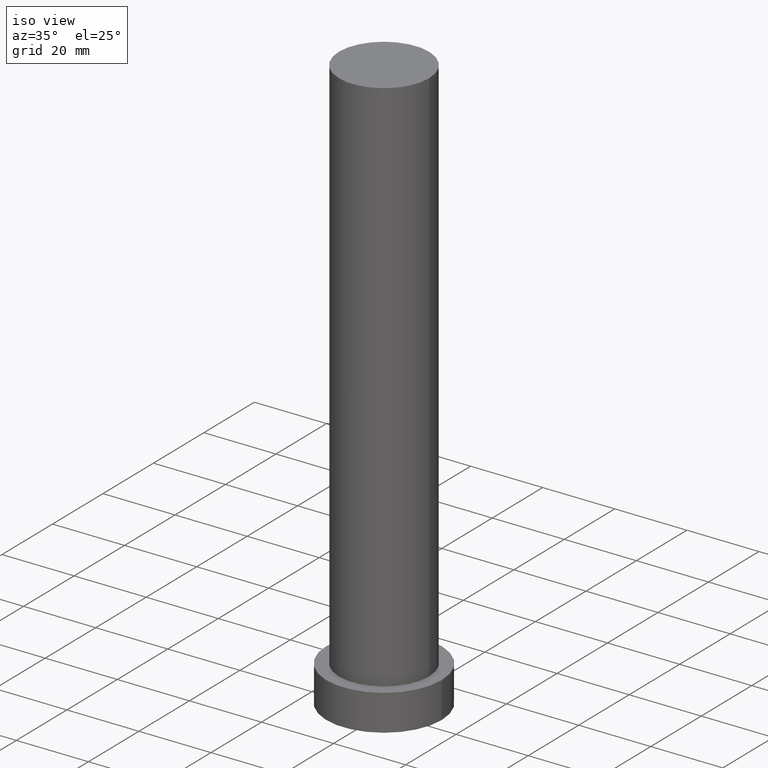
[diagram: clean part render]
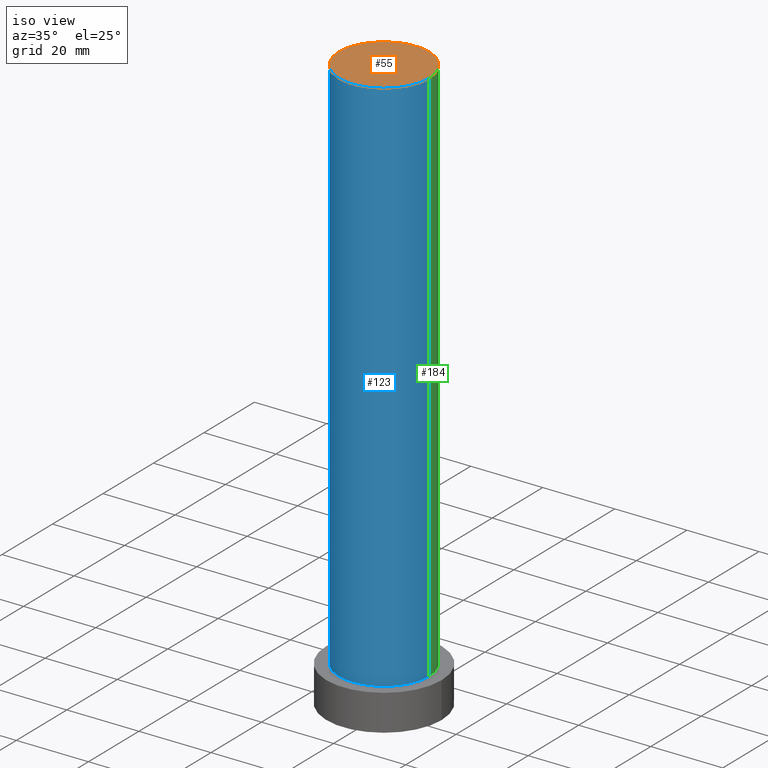
[diagram: same view with three faces highlighted in distinct colors, each labeled with its STEP entity id]
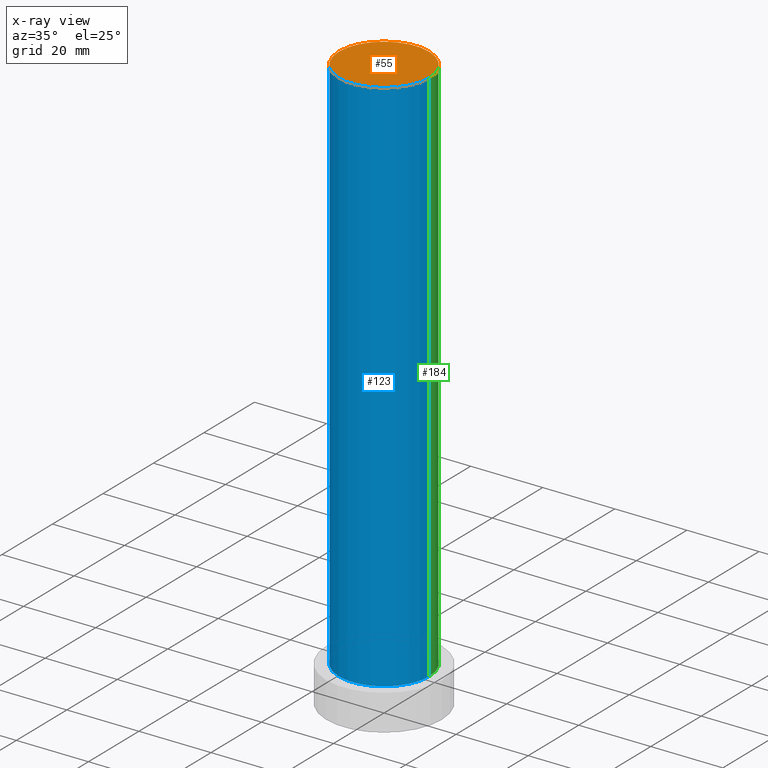
[diagram: x-ray of the same camera — body ghosted, the three highlighted faces saturated]
A machine part, iso view with three faces highlighted in distinct colors.
The next image is the same camera in x-ray (body ghosted, the three faces saturated) — at least one of them is partly hidden behind the body in this view.
Their STEP definitions:

[orange] entity #55 — the highlighted planar face has unit normal (0, 0, 1).
#2 = DIRECTION ( 'NONE',  ( 0.000000000000000000, 0.000000000000000000, 1.000000000000000000 ) ) ;
#19 = CIRCLE ( 'NONE', #163, 12.50000000000000000 ) ;
#39 = VERTEX_POINT ( 'NONE', #133 ) ;
#41 = CARTESIAN_POINT ( 'NONE',  ( 0.000000000000000000, 0.000000000000000000, 160.0000000000000000 ) ) ;
#52 = CIRCLE ( 'NONE', #86, 12.50000000000000000 ) ;
#55 = ADVANCED_FACE ( 'NONE', ( #254 ), #104, .T. ) ;
#78 = ORIENTED_EDGE ( 'NONE', *, *, #85, .T. ) ;
#80 = DIRECTION ( 'NONE',  ( 1.000000000000000000, 0.000000000000000000, 0.000000000000000000 ) ) ;
#85 = EDGE_CURVE ( 'NONE', #39, #127, #19, .T. ) ;
#86 = AXIS2_PLACEMENT_3D ( 'NONE', #139, #212, #80 ) ;
#89 = EDGE_CURVE ( 'NONE', #127, #39, #52, .T. ) ;
#93 = EDGE_LOOP ( 'NONE', ( #78, #110 ) ) ;
#104 = PLANE ( 'NONE',  #227 ) ;
#110 = ORIENTED_EDGE ( 'NONE', *, *, #89, .T. ) ;
#118 = CARTESIAN_POINT ( 'NONE',  ( 12.50000000000000000, 1.530808498934191521E-15, 160.0000000000000000 ) ) ;
#127 = VERTEX_POINT ( 'NONE', #118 ) ;
#133 = CARTESIAN_POINT ( 'NONE',  ( -12.50000000000000000, 0.000000000000000000, 160.0000000000000000 ) ) ;
#134 = DIRECTION ( 'NONE',  ( 0.000000000000000000, 0.000000000000000000, 1.000000000000000000 ) ) ;
#139 = CARTESIAN_POINT ( 'NONE',  ( 0.000000000000000000, 0.000000000000000000, 160.0000000000000000 ) ) ;
#159 = CARTESIAN_POINT ( 'NONE',  ( 0.000000000000000000, 0.000000000000000000, 160.0000000000000000 ) ) ;
#163 = AXIS2_PLACEMENT_3D ( 'NONE', #41, #134, #199 ) ;
#179 = DIRECTION ( 'NONE',  ( 1.000000000000000000, 0.000000000000000000, -0.000000000000000000 ) ) ;
#199 = DIRECTION ( 'NONE',  ( 1.000000000000000000, 0.000000000000000000, 0.000000000000000000 ) ) ;
#212 = DIRECTION ( 'NONE',  ( 0.000000000000000000, 0.000000000000000000, 1.000000000000000000 ) ) ;
#227 = AXIS2_PLACEMENT_3D ( 'NONE', #159, #2, #179 ) ;
#254 = FACE_OUTER_BOUND ( 'NONE', #93, .T. ) ;

[blue] entity #123 — the highlighted cylindrical surface (partial cylindrical patch) has radius 12.5 mm, axis along (-0, -0, -1).
#1 = FACE_OUTER_BOUND ( 'NONE', #244, .T. ) ;
#18 = AXIS2_PLACEMENT_3D ( 'NONE', #171, #188, #152 ) ;
#19 = CIRCLE ( 'NONE', #163, 12.50000000000000000 ) ;
#39 = VERTEX_POINT ( 'NONE', #133 ) ;
#41 = CARTESIAN_POINT ( 'NONE',  ( 0.000000000000000000, 0.000000000000000000, 160.0000000000000000 ) ) ;
#43 = EDGE_CURVE ( 'NONE', #173, #77, #70, .T. ) ;
#61 = ORIENTED_EDGE ( 'NONE', *, *, #201, .F. ) ;
#66 = EDGE_CURVE ( 'NONE', #39, #173, #119, .T. ) ;
#70 = CIRCLE ( 'NONE', #18, 12.50000000000000000 ) ;
#75 = ORIENTED_EDGE ( 'NONE', *, *, #85, .F. ) ;
#77 = VERTEX_POINT ( 'NONE', #213 ) ;
#81 = DIRECTION ( 'NONE',  ( -0.000000000000000000, -0.000000000000000000, -1.000000000000000000 ) ) ;
#85 = EDGE_CURVE ( 'NONE', #39, #127, #19, .T. ) ;
#109 = VECTOR ( 'NONE', #177, 1000.000000000000000 ) ;
#111 = ORIENTED_EDGE ( 'NONE', *, *, #66, .T. ) ;
#116 = ORIENTED_EDGE ( 'NONE', *, *, #43, .T. ) ;
#118 = CARTESIAN_POINT ( 'NONE',  ( 12.50000000000000000, 1.530808498934191521E-15, 160.0000000000000000 ) ) ;
#119 = LINE ( 'NONE', #176, #109 ) ;
#123 = ADVANCED_FACE ( 'NONE', ( #1 ), #196, .T. ) ;
#127 = VERTEX_POINT ( 'NONE', #118 ) ;
#133 = CARTESIAN_POINT ( 'NONE',  ( -12.50000000000000000, 0.000000000000000000, 160.0000000000000000 ) ) ;
#134 = DIRECTION ( 'NONE',  ( 0.000000000000000000, 0.000000000000000000, 1.000000000000000000 ) ) ;
#138 = CARTESIAN_POINT ( 'NONE',  ( 0.000000000000000000, 0.000000000000000000, 160.0000000000000000 ) ) ;
#141 = AXIS2_PLACEMENT_3D ( 'NONE', #138, #81, #181 ) ;
#152 = DIRECTION ( 'NONE',  ( 1.000000000000000000, 0.000000000000000000, 0.000000000000000000 ) ) ;
#158 = DIRECTION ( 'NONE',  ( -0.000000000000000000, -0.000000000000000000, -1.000000000000000000 ) ) ;
#161 = CARTESIAN_POINT ( 'NONE',  ( -12.50000000000000000, 0.000000000000000000, 10.00000000000000000 ) ) ;
#163 = AXIS2_PLACEMENT_3D ( 'NONE', #41, #134, #199 ) ;
#166 = VECTOR ( 'NONE', #158, 1000.000000000000000 ) ;
#171 = CARTESIAN_POINT ( 'NONE',  ( 0.000000000000000000, 0.000000000000000000, 10.00000000000000000 ) ) ;
#173 = VERTEX_POINT ( 'NONE', #161 ) ;
#176 = CARTESIAN_POINT ( 'NONE',  ( -12.50000000000000000, 0.000000000000000000, 160.0000000000000000 ) ) ;
#177 = DIRECTION ( 'NONE',  ( -0.000000000000000000, -0.000000000000000000, -1.000000000000000000 ) ) ;
#181 = DIRECTION ( 'NONE',  ( -1.000000000000000000, 0.000000000000000000, 0.000000000000000000 ) ) ;
#188 = DIRECTION ( 'NONE',  ( 0.000000000000000000, 0.000000000000000000, 1.000000000000000000 ) ) ;
#196 = CYLINDRICAL_SURFACE ( 'NONE', #141, 12.50000000000000000 ) ;
#199 = DIRECTION ( 'NONE',  ( 1.000000000000000000, 0.000000000000000000, 0.000000000000000000 ) ) ;
#201 = EDGE_CURVE ( 'NONE', #127, #77, #252, .T. ) ;
#213 = CARTESIAN_POINT ( 'NONE',  ( 12.50000000000000000, 1.530808498934191521E-15, 10.00000000000000000 ) ) ;
#235 = CARTESIAN_POINT ( 'NONE',  ( 12.50000000000000000, 1.530808498934191521E-15, 160.0000000000000000 ) ) ;
#244 = EDGE_LOOP ( 'NONE', ( #61, #75, #111, #116 ) ) ;
#252 = LINE ( 'NONE', #235, #166 ) ;

[green] entity #184 — the highlighted cylindrical surface (partial cylindrical patch) has radius 12.5 mm, axis along (-0, -0, -1).
#7 = DIRECTION ( 'NONE',  ( 1.000000000000000000, 0.000000000000000000, 0.000000000000000000 ) ) ;
#21 = DIRECTION ( 'NONE',  ( -0.000000000000000000, -0.000000000000000000, -1.000000000000000000 ) ) ;
#32 = ORIENTED_EDGE ( 'NONE', *, *, #66, .F. ) ;
#39 = VERTEX_POINT ( 'NONE', #133 ) ;
#52 = CIRCLE ( 'NONE', #86, 12.50000000000000000 ) ;
#66 = EDGE_CURVE ( 'NONE', #39, #173, #119, .T. ) ;
#77 = VERTEX_POINT ( 'NONE', #213 ) ;
#80 = DIRECTION ( 'NONE',  ( 1.000000000000000000, 0.000000000000000000, 0.000000000000000000 ) ) ;
#86 = AXIS2_PLACEMENT_3D ( 'NONE', #139, #212, #80 ) ;
#87 = DIRECTION ( 'NONE',  ( 0.000000000000000000, 0.000000000000000000, 1.000000000000000000 ) ) ;
#89 = EDGE_CURVE ( 'NONE', #127, #39, #52, .T. ) ;
#95 = AXIS2_PLACEMENT_3D ( 'NONE', #253, #21, #102 ) ;
#102 = DIRECTION ( 'NONE',  ( -1.000000000000000000, 0.000000000000000000, 0.000000000000000000 ) ) ;
#109 = VECTOR ( 'NONE', #177, 1000.000000000000000 ) ;
#117 = FACE_OUTER_BOUND ( 'NONE', #191, .T. ) ;
#118 = CARTESIAN_POINT ( 'NONE',  ( 12.50000000000000000, 1.530808498934191521E-15, 160.0000000000000000 ) ) ;
#119 = LINE ( 'NONE', #176, #109 ) ;
#127 = VERTEX_POINT ( 'NONE', #118 ) ;
#133 = CARTESIAN_POINT ( 'NONE',  ( -12.50000000000000000, 0.000000000000000000, 160.0000000000000000 ) ) ;
#139 = CARTESIAN_POINT ( 'NONE',  ( 0.000000000000000000, 0.000000000000000000, 160.0000000000000000 ) ) ;
#155 = ORIENTED_EDGE ( 'NONE', *, *, #201, .T. ) ;
#158 = DIRECTION ( 'NONE',  ( -0.000000000000000000, -0.000000000000000000, -1.000000000000000000 ) ) ;
#161 = CARTESIAN_POINT ( 'NONE',  ( -12.50000000000000000, 0.000000000000000000, 10.00000000000000000 ) ) ;
#166 = VECTOR ( 'NONE', #158, 1000.000000000000000 ) ;
#173 = VERTEX_POINT ( 'NONE', #161 ) ;
#174 = CIRCLE ( 'NONE', #206, 12.50000000000000000 ) ;
#176 = CARTESIAN_POINT ( 'NONE',  ( -12.50000000000000000, 0.000000000000000000, 160.0000000000000000 ) ) ;
#177 = DIRECTION ( 'NONE',  ( -0.000000000000000000, -0.000000000000000000, -1.000000000000000000 ) ) ;
#184 = ADVANCED_FACE ( 'NONE', ( #117 ), #233, .T. ) ;
#191 = EDGE_LOOP ( 'NONE', ( #209, #155, #228, #32 ) ) ;
#201 = EDGE_CURVE ( 'NONE', #127, #77, #252, .T. ) ;
#206 = AXIS2_PLACEMENT_3D ( 'NONE', #229, #87, #7 ) ;
#209 = ORIENTED_EDGE ( 'NONE', *, *, #89, .F. ) ;
#212 = DIRECTION ( 'NONE',  ( 0.000000000000000000, 0.000000000000000000, 1.000000000000000000 ) ) ;
#213 = CARTESIAN_POINT ( 'NONE',  ( 12.50000000000000000, 1.530808498934191521E-15, 10.00000000000000000 ) ) ;
#228 = ORIENTED_EDGE ( 'NONE', *, *, #248, .T. ) ;
#229 = CARTESIAN_POINT ( 'NONE',  ( 0.000000000000000000, 0.000000000000000000, 10.00000000000000000 ) ) ;
#233 = CYLINDRICAL_SURFACE ( 'NONE', #95, 12.50000000000000000 ) ;
#235 = CARTESIAN_POINT ( 'NONE',  ( 12.50000000000000000, 1.530808498934191521E-15, 160.0000000000000000 ) ) ;
#248 = EDGE_CURVE ( 'NONE', #77, #173, #174, .T. ) ;
#252 = LINE ( 'NONE', #235, #166 ) ;
#253 = CARTESIAN_POINT ( 'NONE',  ( 0.000000000000000000, 0.000000000000000000, 160.0000000000000000 ) ) ;